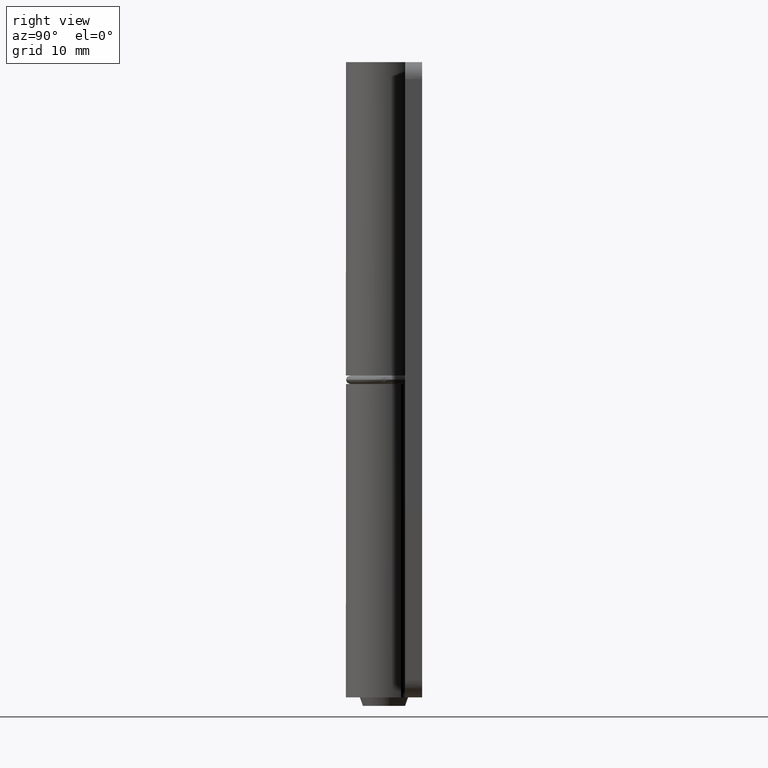
[diagram: clean part render]
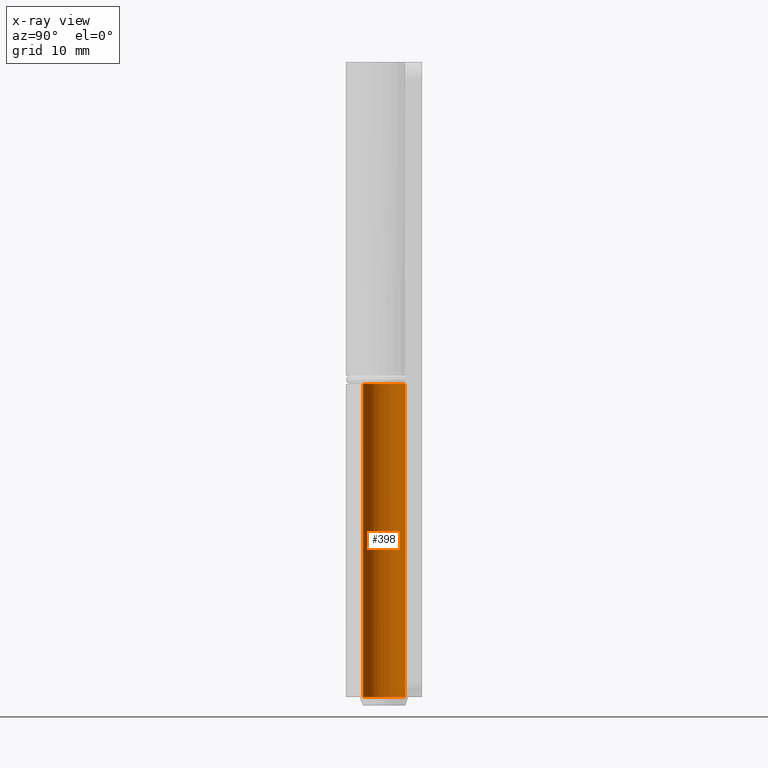
[diagram: x-ray — body ghosted, one internal face saturated and labeled with its STEP entity id]
A machine part, right view, then the same camera in x-ray: the body is ghosted and one INTERNAL B-rep face — a face not visible from any outside direction — is saturated and labeled: STEP entity #398.
In plain terms, the highlighted face is a freeform B-spline surface patch.
Its self-contained STEP definition (entity closure, byte-faithful):
#212=CARTESIAN_POINT('',(0.152621348857169,-2.495336996053302,-3.330669E-016));
#213=VERTEX_POINT('',#212);
#227=CARTESIAN_POINT('',(-2.499999999999860,0.0,0.0));
#228=VERTEX_POINT('',#227);
#229=CARTESIAN_POINT('',(0.152621348857170,-2.495336996053303,0.0));
#230=CARTESIAN_POINT('',(0.076381908256514,-2.499999999999861,0.0));
#231=CARTESIAN_POINT('',(0.0,-2.499999999999860,0.0));
#232=CARTESIAN_POINT('',(-2.499999999999860,-2.499999999999860,0.0));
#233=CARTESIAN_POINT('',(-2.499999999999860,0.0,0.0));
#241=(BOUNDED_CURVE()B_SPLINE_CURVE(2,(#229,#230,#231,#232,#233),.UNSPECIFIED.,.F.,.U.)B_SPLINE_CURVE_WITH_KNOTS((3,2,3),(0.739332962240583,0.750000000000000,1.0),.UNSPECIFIED.)CURVE()GEOMETRIC_REPRESENTATION_ITEM()RATIONAL_B_SPLINE_CURVE((0.976072041670232,0.987502787901759,1.0,0.707106781186548,1.0))REPRESENTATION_ITEM(''));
#242=EDGE_CURVE('',#213,#228,#241,.T.);
#244=CARTESIAN_POINT('',(-0.152621348857169,2.495336996053302,-3.330669E-016));
#245=VERTEX_POINT('',#244);
#246=CARTESIAN_POINT('',(-2.499999999999860,0.0,0.0));
#247=CARTESIAN_POINT('',(-2.499999999999861,2.351765167245188,0.0));
#248=CARTESIAN_POINT('',(-0.152621348857169,2.495336996053303,0.0));
#256=(BOUNDED_CURVE()B_SPLINE_CURVE(2,(#246,#247,#248),.UNSPECIFIED.,.F.,.U.)B_SPLINE_CURVE_WITH_KNOTS((3,3),(0.0,0.239332962240583),.UNSPECIFIED.)CURVE()GEOMETRIC_REPRESENTATION_ITEM()RATIONAL_B_SPLINE_CURVE((1.0,0.719603993284789,0.976072041670233))REPRESENTATION_ITEM(''));
#257=EDGE_CURVE('',#228,#245,#256,.T.);
#296=CARTESIAN_POINT('',(-0.152621348857169,2.495336996053302,37.0));
#297=VERTEX_POINT('',#296);
#298=CARTESIAN_POINT('',(-0.152621348857169,2.495336996053302,37.0));
#299=CARTESIAN_POINT('',(-0.152621348857169,2.495336996053302,-3.330669E-016));
#300=QUASI_UNIFORM_CURVE('',1,(#298,#299),.UNSPECIFIED.,.F.,.U.);
#301=EDGE_CURVE('',#297,#245,#300,.T.);
#320=CARTESIAN_POINT('',(0.152621348857169,-2.495336996053302,37.0));
#321=VERTEX_POINT('',#320);
#335=CARTESIAN_POINT('',(0.152621348857169,-2.495336996053302,37.0));
#336=CARTESIAN_POINT('',(0.152621348857169,-2.495336996053302,-3.330669E-016));
#337=QUASI_UNIFORM_CURVE('',1,(#335,#336),.UNSPECIFIED.,.F.,.U.);
#338=EDGE_CURVE('',#321,#213,#337,.T.);
#344=CARTESIAN_POINT('',(0.152621348837134,-2.495336996054527,37.925000000000011));
#345=CARTESIAN_POINT('',(-2.342715647217393,-2.647958344891661,37.925000000000004));
#346=CARTESIAN_POINT('',(-2.495336996054527,-0.152621348837134,37.925000000000011));
#347=CARTESIAN_POINT('',(-2.647958344891661,2.342715647217393,37.925000000000004));
#348=CARTESIAN_POINT('',(-0.152621348837134,2.495336996054527,37.925000000000011));
#349=CARTESIAN_POINT('',(0.152621348837134,-2.495336996054527,-0.948124999999997));
#350=CARTESIAN_POINT('',(-2.342715647217393,-2.647958344891661,-0.948124999999997));
#351=CARTESIAN_POINT('',(-2.495336996054527,-0.152621348837134,-0.948124999999997));
#352=CARTESIAN_POINT('',(-2.647958344891661,2.342715647217393,-0.948124999999997));
#353=CARTESIAN_POINT('',(-0.152621348837134,2.495336996054527,-0.948124999999997));
#361=(BOUNDED_SURFACE()B_SPLINE_SURFACE(2,1,((#344,#349),(#345,#350),(#346,#351),(#347,#352),(#348,#353)),.UNSPECIFIED.,.F.,.F.,.U.)B_SPLINE_SURFACE_WITH_KNOTS((3,2,3),(2,2),(0.0,4.142135623730717,8.284271247461435),(0.0,38.873125000000009),.UNSPECIFIED.)GEOMETRIC_REPRESENTATION_ITEM()RATIONAL_B_SPLINE_SURFACE(((1.0,1.0),(0.707106781186548,0.707106781186548),(1.0,1.0),(0.707106781186548,0.707106781186548),(1.0,1.0)))REPRESENTATION_ITEM('')SURFACE());
#362=ORIENTED_EDGE('',*,*,#257,.F.);
#363=ORIENTED_EDGE('',*,*,#242,.F.);
#364=ORIENTED_EDGE('',*,*,#338,.F.);
#365=CARTESIAN_POINT('',(-2.499999999999860,0.0,37.0));
#366=VERTEX_POINT('',#365);
#367=CARTESIAN_POINT('',(0.152621348857170,-2.495336996053303,37.0));
#368=CARTESIAN_POINT('',(0.076381908256514,-2.499999999999861,37.0));
#369=CARTESIAN_POINT('',(0.0,-2.499999999999860,37.0));
#370=CARTESIAN_POINT('',(-2.499999999999860,-2.499999999999860,37.0));
#371=CARTESIAN_POINT('',(-2.499999999999860,0.0,37.0));
#379=(BOUNDED_CURVE()B_SPLINE_CURVE(2,(#367,#368,#369,#370,#371),.UNSPECIFIED.,.F.,.U.)B_SPLINE_CURVE_WITH_KNOTS((3,2,3),(0.739332962240583,0.750000000000000,1.0),.UNSPECIFIED.)CURVE()GEOMETRIC_REPRESENTATION_ITEM()RATIONAL_B_SPLINE_CURVE((0.976072041670232,0.987502787901759,1.0,0.707106781186548,1.0))REPRESENTATION_ITEM(''));
#380=EDGE_CURVE('',#321,#366,#379,.T.);
#381=ORIENTED_EDGE('',*,*,#380,.T.);
#382=CARTESIAN_POINT('',(-2.499999999999860,0.0,37.0));
#383=CARTESIAN_POINT('',(-2.499999999999861,2.351765167245188,36.999999999999993));
#384=CARTESIAN_POINT('',(-0.152621348857169,2.495336996053303,37.0));
#392=(BOUNDED_CURVE()B_SPLINE_CURVE(2,(#382,#383,#384),.UNSPECIFIED.,.F.,.U.)B_SPLINE_CURVE_WITH_KNOTS((3,3),(0.0,0.239332962240583),.UNSPECIFIED.)CURVE()GEOMETRIC_REPRESENTATION_ITEM()RATIONAL_B_SPLINE_CURVE((1.0,0.719603993284789,0.976072041670233))REPRESENTATION_ITEM(''));
#393=EDGE_CURVE('',#366,#297,#392,.T.);
#394=ORIENTED_EDGE('',*,*,#393,.T.);
#395=ORIENTED_EDGE('',*,*,#301,.T.);
#396=EDGE_LOOP('',(#362,#363,#364,#381,#394,#395));
#397=FACE_OUTER_BOUND('',#396,.T.);
#398=ADVANCED_FACE('',(#397),#361,.T.);